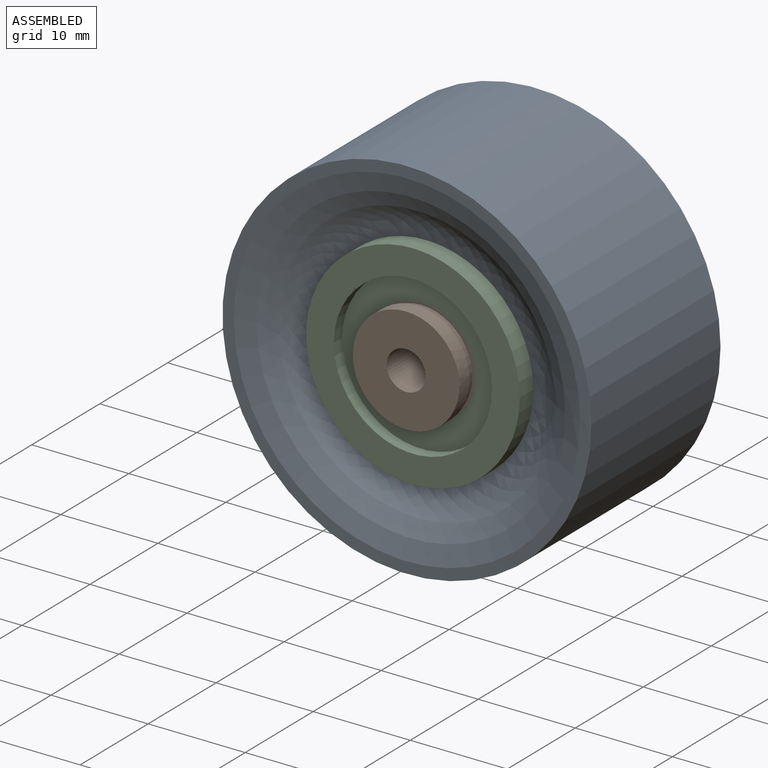
[diagram: assembled view]
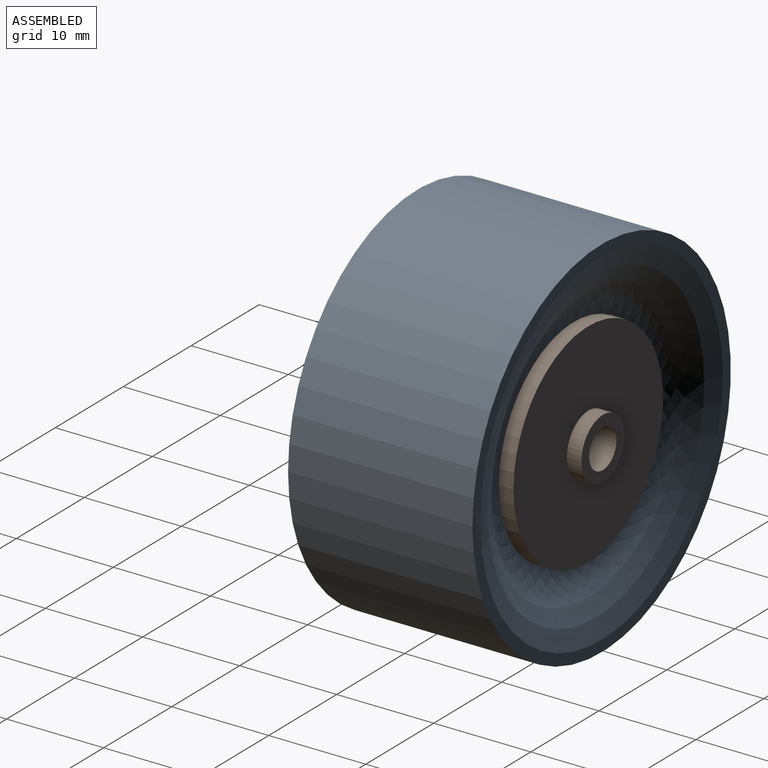
[diagram: assembled view, second angle]
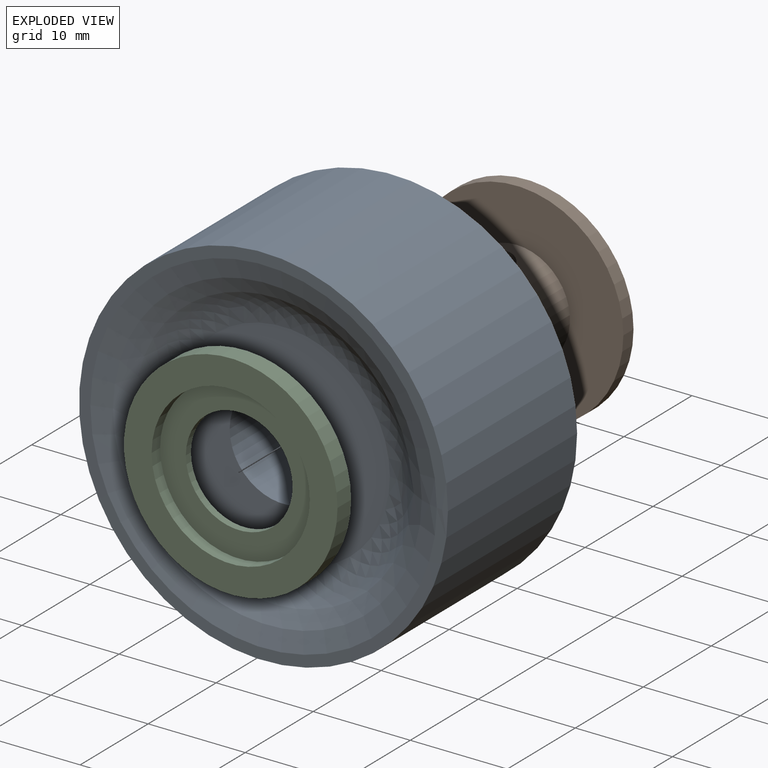
[diagram: exploded view]
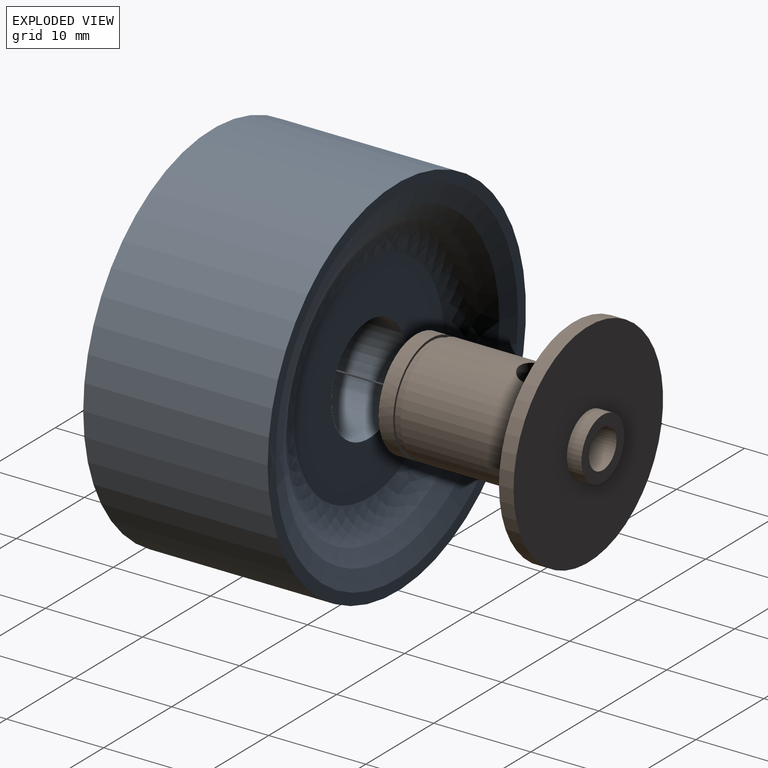
[diagram: exploded view, second angle]
ASSEMBLY  parts=3 mates=4
PART A: 6 faces, bbox 38x38x19.1 mm
  f0: revolved ~38x38mm, area 813.6mm2, adj f1,f5
  f1: cylinder r=19mm len=38mm, axis (0,0,1), area 2268.2mm2, adj f0,f2
  f2: revolved ~38x38mm, area 813.6mm2, adj f1,f3
  f3: plane 22x22mm, normal (0,0,1), area 285.1mm2, adj f2,f4
  f4: cylinder r=5.5mm len=13.25mm, axis (0,0,1), area 457.9mm2, adj f3,f5
  f5: plane 22x22mm, normal (0,0,-1), area 285.1mm2, adj f0,f4
PART B: 15 faces, bbox 22x19.3x22 mm
  f0: cylinder r=2mm len=19.25mm, axis (0,1,0), area 225.9mm2, adj f6,f8,f12,f13,f14
  f1: cylinder r=5.5mm len=14mm, axis (0,1,0), area 473.3mm2, adj f4,f10,f12
  f2: cylinder r=5.5mm len=11mm, axis (0,1,0), area 51.8mm2, adj f6,f11
  f3: cylinder r=11mm len=22mm, axis (0,1,0), area 103.7mm2, adj f4,f5
  f4: plane 22x22mm, normal (0,-1,0), area 285.1mm2, adj f1,f3
  f5: plane 22x22mm, normal (0,1,0), area 349mm2, adj f3,f7
  f6: plane 11x11mm, normal (0,-1,0), area 82.5mm2, adj f0,f2
  f7: cylinder r=3.15mm len=6.3mm, axis (0,-1,0), area 29.7mm2, adj f5,f8
  f8: plane 6.3x6.3mm, normal (0,1,0), area 18.6mm2, adj f0,f7
  f9: cylinder r=5.25mm len=10.5mm, axis (0,1,0), area 24.7mm2, adj f10,f11
  f10: plane 11x11mm, normal (0,-1,0), area 8.4mm2, adj f1,f9
  f11: plane 11x11mm, normal (0,1,0), area 8.4mm2, adj f2,f9
  f12: cylinder r=2mm len=5.5mm, axis (0,0,1), area 51.9mm2, adj f0,f1
  f13: cylinder r=2mm len=0.28mm, axis (0,0,1), area 0mm2, adj f0
  f14: cylinder r=2mm len=0.28mm, axis (0,0,1), area 0mm2, adj f0
PART C: 6 faces, bbox 22x2x22 mm
  f0: cylinder r=8.15mm len=16.3mm, axis (0,1,0), area 64mm2, adj f2,f5
  f1: cylinder r=11mm len=22mm, axis (0,1,0), area 138.2mm2, adj f2,f3
  f2: plane 22x22mm, normal (0,-1,0), area 171.5mm2, adj f0,f1
  f3: plane 22x22mm, normal (0,1,0), area 285.1mm2, adj f1,f4
  f4: cylinder r=5.5mm len=11mm, axis (0,1,0), area 25.9mm2, adj f3,f5
  f5: plane 16.3x16.3mm, normal (0,-1,0), area 113.6mm2, adj f0,f4
PLACE A rot(axis=(-1,0,0),90deg) t=(11.78,-4.96,-7.44)mm
PLACE B t=(11.78,3.16,-7.44)mm
PLACE C t=(11.78,-11.59,-7.44)mm
MATE cylindrical A.f1 <-> B.f0  axis (0,1,0) through (11.78,-4.96,-7.44)mm
MATE cylindrical C.f0 <-> B.f0  axis (0,1,0) through (11.78,-11.96,-7.44)mm
MATE planar A.f1 <-> C.f0  axis (0,-1,0) through (11.78,-11.59,-7.44)mm
MATE planar C.f0 <-> B.f0  axis (0,-1,0) through (11.78,-12.34,-7.44)mm
